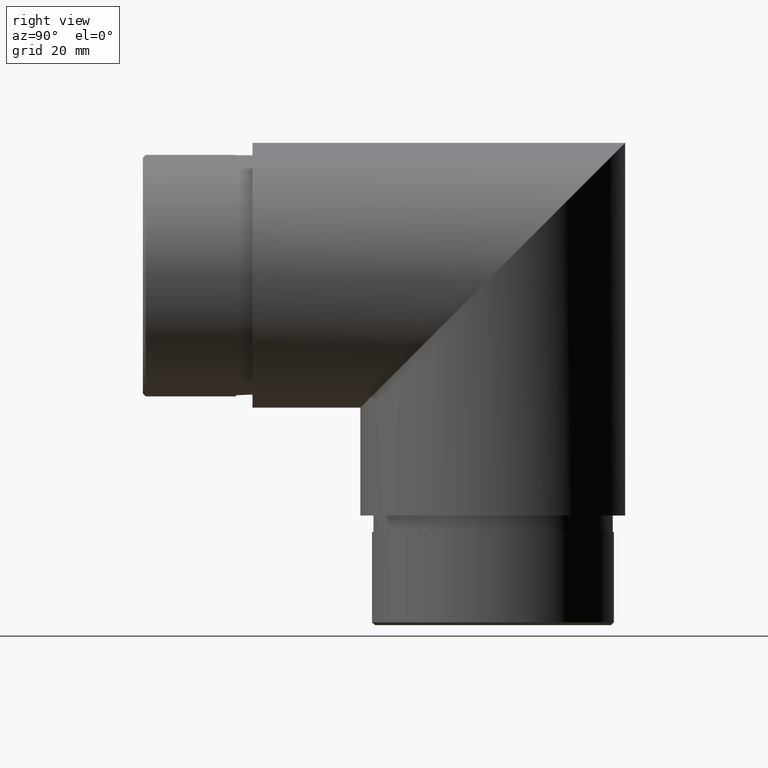
[diagram: clean part render]
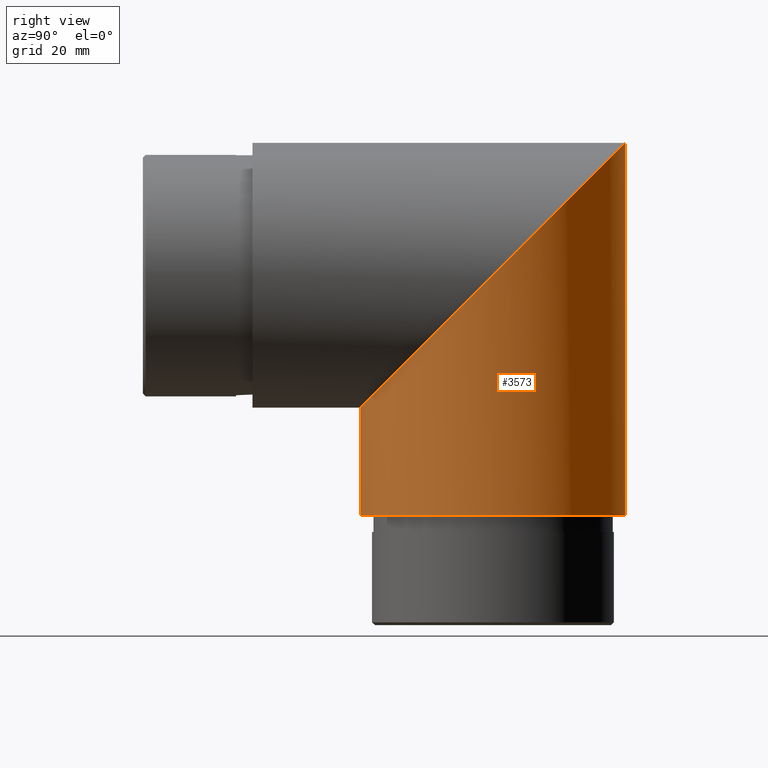
[diagram: same view with one face highlighted and labeled with its STEP entity id]
A machine part, right view. The second image highlights one B-rep face of the part: STEP entity #3573.
In plain terms, the highlighted cylindrical surface (bore or boss wall) has radius 24.15 mm, axis along (0, -0, -1).
Its self-contained STEP definition (entity closure, byte-faithful):
#149 = AXIS2_PLACEMENT_3D ( 'NONE', #8032, #1221, #9827 ) ;
#198 = CARTESIAN_POINT ( 'NONE',  ( 0.0000000000000000000, 19.69999999999990700, -24.15000000000000600 ) ) ;
#267 = CARTESIAN_POINT ( 'NONE',  ( 0.0000000000000000000, 43.85000000000000100, 0.0000000000000000000 ) ) ;
#347 = CARTESIAN_POINT ( 'NONE',  ( 48.30000000000001100, 19.69999999999990700, -24.15000000000000900 ) ) ;
#1121 = CARTESIAN_POINT ( 'NONE',  ( 0.0000000000000000000, 19.69999999999990700, -24.15000000000000600 ) ) ;
#1221 = DIRECTION ( 'NONE',  ( -0.0000000000000000000, 3.639556665675399200E-015, 1.000000000000000000 ) ) ;
#1942 = DIRECTION ( 'NONE',  ( 0.0000000000000000000, 1.000000000000000000, -3.639556665675399200E-015 ) ) ;
#1958 = EDGE_LOOP ( 'NONE', ( #3918 ) ) ;
#2312 = EDGE_LOOP ( 'NONE', ( #4741 ) ) ;
#2519 = CIRCLE ( 'NONE', #149, 24.14999999999999900 ) ;
#2925 = CARTESIAN_POINT ( 'NONE',  ( -2.957522019940858700E-015, 68.00000000000008500, 24.15000000000000600 ) ) ;
#3573 = ADVANCED_FACE ( 'NONE', ( #4842, #7800 ), #10248, .T. ) ;
#3918 = ORIENTED_EDGE ( 'NONE', *, *, #8733, .T. ) ;
#4411 = EDGE_CURVE ( 'NONE', #10031, #10031, #8249, .T. ) ;
#4562 = CARTESIAN_POINT ( 'NONE',  ( -48.30000000000001100, 68.00000000000008500, 24.14999999999999900 ) ) ;
#4741 = ORIENTED_EDGE ( 'NONE', *, *, #4411, .T. ) ;
#4842 = FACE_OUTER_BOUND ( 'NONE', #2312, .T. ) ;
#4847 = AXIS2_PLACEMENT_3D ( 'NONE', #267, #9686, #1942 ) ;
#5316 = CARTESIAN_POINT ( 'NONE',  ( 48.30000000000001100, 68.00000000000008500, 24.15000000000001600 ) ) ;
#5393 = CARTESIAN_POINT ( 'NONE',  ( 0.0000000000000000000, 19.69999999999990700, -24.15000000000000600 ) ) ;
#5468 = CARTESIAN_POINT ( 'NONE',  ( -48.30000000000001100, 19.69999999999990700, -24.15000000000000900 ) ) ;
#7712 = VERTEX_POINT ( 'NONE', #10592 ) ;
#7800 = FACE_OUTER_BOUND ( 'NONE', #1958, .T. ) ;
#8032 = CARTESIAN_POINT ( 'NONE',  ( 0.0000000000000000000, 43.84999999999983800, -43.85000000000000100 ) ) ;
#8249 =( BOUNDED_CURVE ( )  B_SPLINE_CURVE ( 3, ( #5393, #5468, #4562, #2925, #5316, #347, #198 ),
 .UNSPECIFIED., .T., .T. ) 
 B_SPLINE_CURVE_WITH_KNOTS ( ( 4, 3, 4 ),
 ( 0.0000000000000000000, 3.141592653589793100, 6.283185307179586200 ),
 .UNSPECIFIED. ) 
 CURVE ( )  GEOMETRIC_REPRESENTATION_ITEM ( )  RATIONAL_B_SPLINE_CURVE ( ( 1.000000000000000000, 0.3333333333333333700, 0.3333333333333333700, 1.000000000000000000, 0.3333333333333333700, 0.3333333333333333700, 1.000000000000000000 ) ) 
 REPRESENTATION_ITEM ( '' )  );
#8733 = EDGE_CURVE ( 'NONE', #7712, #7712, #2519, .T. ) ;
#9686 = DIRECTION ( 'NONE',  ( 0.0000000000000000000, -3.639556665675399200E-015, -1.000000000000000000 ) ) ;
#9827 = DIRECTION ( 'NONE',  ( 0.0000000000000000000, 1.000000000000000000, -3.735222391337224500E-015 ) ) ;
#10031 = VERTEX_POINT ( 'NONE', #1121 ) ;
#10248 = CYLINDRICAL_SURFACE ( 'NONE', #4847, 24.15000000000000600 ) ;
#10592 = CARTESIAN_POINT ( 'NONE',  ( 0.0000000000000000000, 67.99999999999984400, -43.85000000000009400 ) ) ;